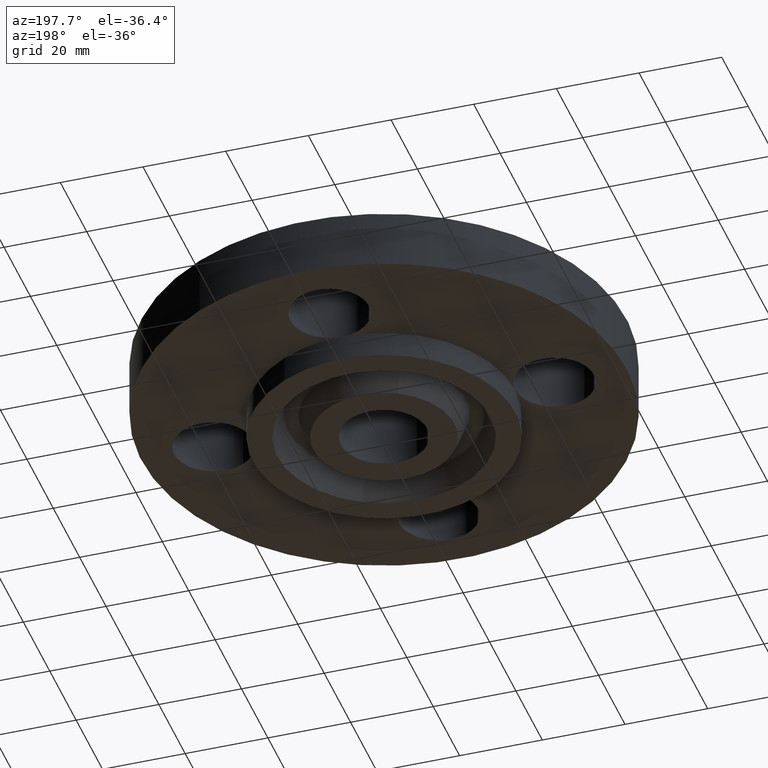
[diagram: clean part render]
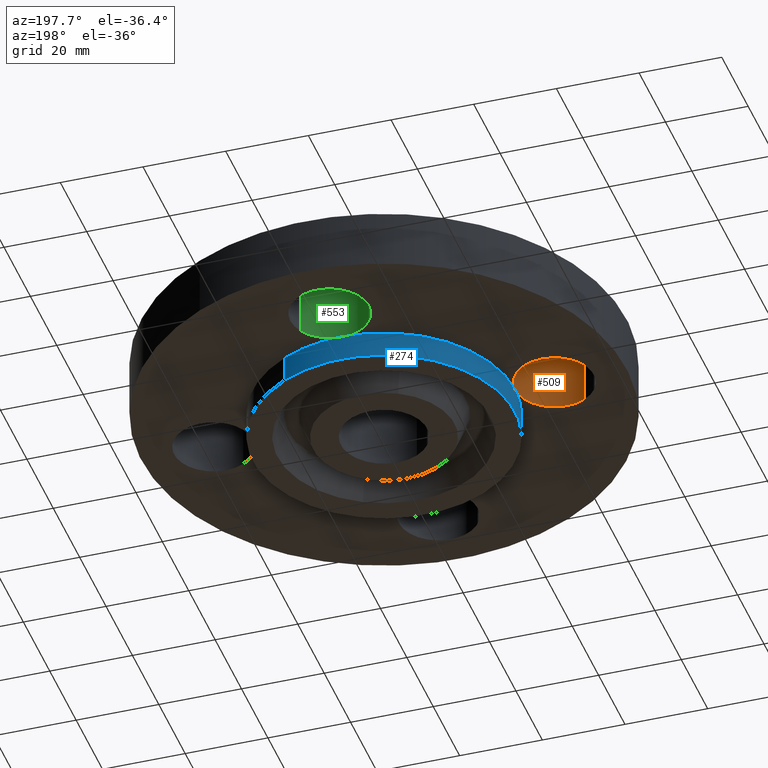
[diagram: same view with three faces highlighted in distinct colors, each labeled with its STEP entity id]
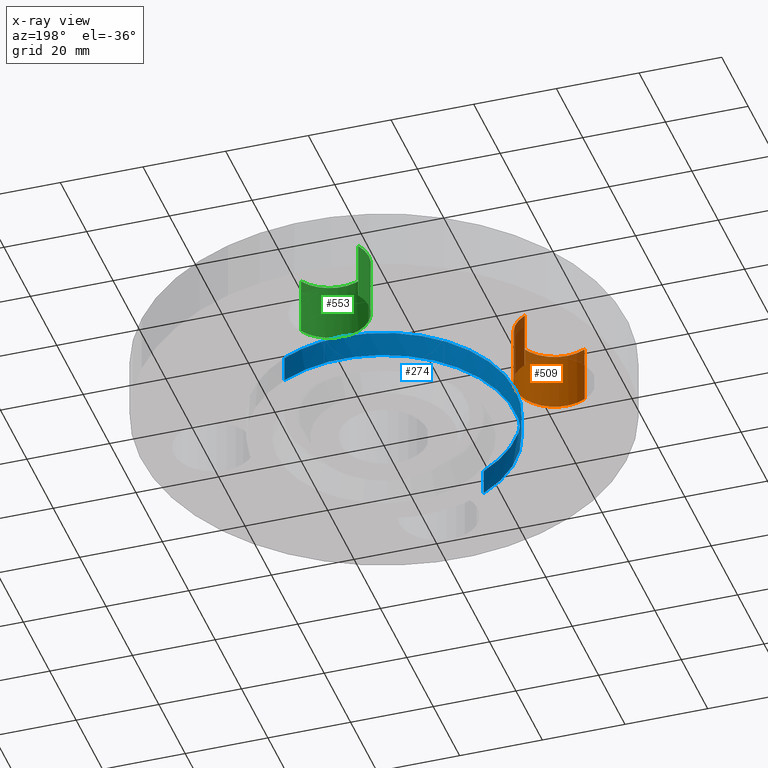
[diagram: x-ray of the same camera — body ghosted, the three highlighted faces saturated]
A machine part, auxiliary view with three faces highlighted in distinct colors.
The next image is the same camera in x-ray (body ghosted, the three faces saturated) — at least one of them is partly hidden behind the body in this view.
Their STEP definitions:

[orange] entity #509 — the highlighted cylindrical surface (partial cylindrical patch) has radius 9.525 mm, axis along (0, 0, -1).
#385=AXIS2_PLACEMENT_3D('Circle Axis2P3D',#383,#384,$) ;
#399=AXIS2_PLACEMENT_3D('Circle Axis2P3D',#397,#398,$) ;
#469=AXIS2_PLACEMENT_3D('Cylinder Axis2P3D',#466,#467,#468) ;
#499=AXIS2_PLACEMENT_3D('Circle Axis2P3D',#497,#498,$) ;
#244=CARTESIAN_POINT('Vertex',(-1.25000000001,-1.39870617276E-016,0.)) ;
#383=CARTESIAN_POINT('Axis2P3D Location',(-1.62500000001,-2.79741234551E-016,0.)) ;
#387=CARTESIAN_POINT('Vertex',(-1.44521542303,0.32909346071,6.99353086378E-017)) ;
#394=CARTESIAN_POINT('Vertex',(-1.80478457698,-0.32909346071,0.)) ;
#397=CARTESIAN_POINT('Axis2P3D Location',(-1.62500000001,-2.79741234551E-016,0.)) ;
#466=CARTESIAN_POINT('Axis2P3D Location',(-1.62500000001,-2.98507657293E-016,0.556062992128)) ;
#471=CARTESIAN_POINT('Line Origine',(-1.80478457698,-0.32909346071,0.280000000001)) ;
#475=CARTESIAN_POINT('Vertex',(-1.80478457698,-0.32909346071,0.560000000002)) ;
#478=CARTESIAN_POINT('Line Origine',(-1.44521542303,0.32909346071,0.280000000001)) ;
#482=CARTESIAN_POINT('Vertex',(-1.44521542303,0.32909346071,0.560000000002)) ;
#497=CARTESIAN_POINT('Axis2P3D Location',(-1.62500000001,-2.98507657293E-016,0.560000000002)) ;
#384=DIRECTION('Axis2P3D Direction',(0.,0.,-0.0393700787402)) ;
#398=DIRECTION('Axis2P3D Direction',(0.,0.,-0.0393700787402)) ;
#467=DIRECTION('Axis2P3D Direction',(0.,0.,-0.0393700787402)) ;
#468=DIRECTION('Axis2P3D XDirection',(0.0188750212049,0.0345504945626,0.)) ;
#472=DIRECTION('Vector Direction',(0.,0.,-0.0393700787402)) ;
#479=DIRECTION('Vector Direction',(0.,0.,-0.0393700787402)) ;
#498=DIRECTION('Axis2P3D Direction',(0.,0.,-0.0393700787402)) ;
#473=VECTOR('Line Direction',#472,0.0393700787402) ;
#480=VECTOR('Line Direction',#479,0.0393700787402) ;
#503=ORIENTED_EDGE('',*,*,#484,.F.) ;
#504=ORIENTED_EDGE('',*,*,#389,.T.) ;
#505=ORIENTED_EDGE('',*,*,#401,.T.) ;
#506=ORIENTED_EDGE('',*,*,#477,.T.) ;
#507=ORIENTED_EDGE('',*,*,#501,.F.) ;
#509=ADVANCED_FACE('PartBody',(#508),#470,.F.) ;
#386=CIRCLE('generated circle',#385,0.375000000001) ;
#400=CIRCLE('generated circle',#399,0.375000000001) ;
#500=CIRCLE('generated circle',#499,0.375000000001) ;
#470=CYLINDRICAL_SURFACE('generated cylinder',#469,0.375000000001) ;
#389=EDGE_CURVE('',#388,#245,#386,.T.) ;
#401=EDGE_CURVE('',#245,#395,#400,.T.) ;
#477=EDGE_CURVE('',#395,#476,#474,.F.) ;
#484=EDGE_CURVE('',#388,#483,#481,.F.) ;
#501=EDGE_CURVE('',#483,#476,#500,.T.) ;
#502=EDGE_LOOP('',(#503,#504,#505,#506,#507)) ;
#508=FACE_OUTER_BOUND('',#502,.T.) ;
#474=LINE('Line',#471,#473) ;
#481=LINE('Line',#478,#480) ;
#245=VERTEX_POINT('',#244) ;
#388=VERTEX_POINT('',#387) ;
#395=VERTEX_POINT('',#394) ;
#476=VERTEX_POINT('',#475) ;
#483=VERTEX_POINT('',#482) ;

[blue] entity #274 — the highlighted cylindrical surface (partial cylindrical patch) has radius 31.75 mm, axis along (0, 0, -1).
#193=AXIS2_PLACEMENT_3D('Circle Axis2P3D',#191,#192,$) ;
#231=AXIS2_PLACEMENT_3D('Cylinder Axis2P3D',#228,#229,#230) ;
#242=AXIS2_PLACEMENT_3D('Circle Axis2P3D',#240,#241,$) ;
#249=AXIS2_PLACEMENT_3D('Circle Axis2P3D',#247,#248,$) ;
#256=AXIS2_PLACEMENT_3D('Circle Axis2P3D',#254,#255,$) ;
#191=CARTESIAN_POINT('Axis2P3D Location',(0.,0.,-0.250000000001)) ;
#195=CARTESIAN_POINT('Vertex',(-0.599281923258,-1.09697820237,-0.250000000001)) ;
#197=CARTESIAN_POINT('Vertex',(0.599281923258,1.09697820237,-0.250000000001)) ;
#228=CARTESIAN_POINT('Axis2P3D Location',(0.,0.,0.345000000001)) ;
#233=CARTESIAN_POINT('Line Origine',(-0.599281923258,-1.09697820237,-0.125)) ;
#237=CARTESIAN_POINT('Vertex',(-0.599281923258,-1.09697820237,1.39870617276E-016)) ;
#240=CARTESIAN_POINT('Axis2P3D Location',(0.,0.,1.39870617276E-016)) ;
#244=CARTESIAN_POINT('Vertex',(-1.25000000001,-1.39870617276E-016,0.)) ;
#247=CARTESIAN_POINT('Axis2P3D Location',(0.,0.,1.39870617276E-016)) ;
#251=CARTESIAN_POINT('Vertex',(3.90510912389E-015,1.25000000001,1.39870617276E-016)) ;
#254=CARTESIAN_POINT('Axis2P3D Location',(0.,0.,1.39870617276E-016)) ;
#258=CARTESIAN_POINT('Vertex',(0.599281923258,1.09697820237,1.39870617276E-016)) ;
#261=CARTESIAN_POINT('Line Origine',(0.599281923258,1.09697820237,-0.125)) ;
#192=DIRECTION('Axis2P3D Direction',(0.,0.,-0.0393700787402)) ;
#229=DIRECTION('Axis2P3D Direction',(0.,0.,-0.0393700787402)) ;
#230=DIRECTION('Axis2P3D XDirection',(0.0188750212049,0.0345504945626,0.)) ;
#234=DIRECTION('Vector Direction',(0.,0.,-0.0393700787402)) ;
#241=DIRECTION('Axis2P3D Direction',(0.,0.,-0.0393700787402)) ;
#248=DIRECTION('Axis2P3D Direction',(0.,0.,-0.0393700787402)) ;
#255=DIRECTION('Axis2P3D Direction',(0.,0.,-0.0393700787402)) ;
#262=DIRECTION('Vector Direction',(0.,0.,-0.0393700787402)) ;
#235=VECTOR('Line Direction',#234,0.0393700787402) ;
#263=VECTOR('Line Direction',#262,0.0393700787402) ;
#267=ORIENTED_EDGE('',*,*,#199,.F.) ;
#268=ORIENTED_EDGE('',*,*,#239,.T.) ;
#269=ORIENTED_EDGE('',*,*,#246,.T.) ;
#270=ORIENTED_EDGE('',*,*,#253,.T.) ;
#271=ORIENTED_EDGE('',*,*,#260,.T.) ;
#272=ORIENTED_EDGE('',*,*,#265,.F.) ;
#274=ADVANCED_FACE('PartBody',(#273),#232,.T.) ;
#194=CIRCLE('generated circle',#193,1.25000000001) ;
#243=CIRCLE('generated circle',#242,1.25000000001) ;
#250=CIRCLE('generated circle',#249,1.25000000001) ;
#257=CIRCLE('generated circle',#256,1.25000000001) ;
#232=CYLINDRICAL_SURFACE('generated cylinder',#231,1.25000000001) ;
#199=EDGE_CURVE('',#196,#198,#194,.T.) ;
#239=EDGE_CURVE('',#196,#238,#236,.F.) ;
#246=EDGE_CURVE('',#238,#245,#243,.T.) ;
#253=EDGE_CURVE('',#245,#252,#250,.T.) ;
#260=EDGE_CURVE('',#252,#259,#257,.T.) ;
#265=EDGE_CURVE('',#198,#259,#264,.F.) ;
#266=EDGE_LOOP('',(#267,#268,#269,#270,#271,#272)) ;
#273=FACE_OUTER_BOUND('',#266,.T.) ;
#236=LINE('Line',#233,#235) ;
#264=LINE('Line',#261,#263) ;
#196=VERTEX_POINT('',#195) ;
#198=VERTEX_POINT('',#197) ;
#238=VERTEX_POINT('',#237) ;
#245=VERTEX_POINT('',#244) ;
#252=VERTEX_POINT('',#251) ;
#259=VERTEX_POINT('',#258) ;

[green] entity #553 — the highlighted cylindrical surface (partial cylindrical patch) has radius 9.525 mm, axis along (0, -0, -1).
#366=AXIS2_PLACEMENT_3D('Circle Axis2P3D',#364,#365,$) ;
#380=AXIS2_PLACEMENT_3D('Circle Axis2P3D',#378,#379,$) ;
#513=AXIS2_PLACEMENT_3D('Cylinder Axis2P3D',#510,#511,#512) ;
#543=AXIS2_PLACEMENT_3D('Circle Axis2P3D',#541,#542,$) ;
#251=CARTESIAN_POINT('Vertex',(3.90510912389E-015,1.25000000001,1.39870617276E-016)) ;
#364=CARTESIAN_POINT('Axis2P3D Location',(3.49676543189E-017,1.62500000001,0.)) ;
#368=CARTESIAN_POINT('Vertex',(0.32909346071,1.44521542303,6.99353086378E-017)) ;
#375=CARTESIAN_POINT('Vertex',(-0.32909346071,1.80478457698,6.99353086378E-017)) ;
#378=CARTESIAN_POINT('Axis2P3D Location',(3.49676543189E-017,1.62500000001,0.)) ;
#510=CARTESIAN_POINT('Axis2P3D Location',(0.,1.62500000001,0.556062992128)) ;
#515=CARTESIAN_POINT('Line Origine',(-0.32909346071,1.80478457698,0.280000000001)) ;
#519=CARTESIAN_POINT('Vertex',(-0.32909346071,1.80478457698,0.560000000002)) ;
#522=CARTESIAN_POINT('Line Origine',(0.32909346071,1.44521542303,0.280000000001)) ;
#526=CARTESIAN_POINT('Vertex',(0.32909346071,1.44521542303,0.560000000002)) ;
#541=CARTESIAN_POINT('Axis2P3D Location',(0.,1.62500000001,0.560000000002)) ;
#365=DIRECTION('Axis2P3D Direction',(0.,0.,-0.0393700787402)) ;
#379=DIRECTION('Axis2P3D Direction',(0.,0.,-0.0393700787402)) ;
#511=DIRECTION('Axis2P3D Direction',(0.,-0.,-0.0393700787402)) ;
#512=DIRECTION('Axis2P3D XDirection',(0.0345504945626,-0.0188750212049,0.)) ;
#516=DIRECTION('Vector Direction',(0.,0.,-0.0393700787402)) ;
#523=DIRECTION('Vector Direction',(0.,0.,-0.0393700787402)) ;
#542=DIRECTION('Axis2P3D Direction',(0.,-0.,-0.0393700787402)) ;
#517=VECTOR('Line Direction',#516,0.0393700787402) ;
#524=VECTOR('Line Direction',#523,0.0393700787402) ;
#547=ORIENTED_EDGE('',*,*,#528,.F.) ;
#548=ORIENTED_EDGE('',*,*,#370,.T.) ;
#549=ORIENTED_EDGE('',*,*,#382,.T.) ;
#550=ORIENTED_EDGE('',*,*,#521,.T.) ;
#551=ORIENTED_EDGE('',*,*,#545,.F.) ;
#553=ADVANCED_FACE('PartBody',(#552),#514,.F.) ;
#367=CIRCLE('generated circle',#366,0.375000000001) ;
#381=CIRCLE('generated circle',#380,0.375000000001) ;
#544=CIRCLE('generated circle',#543,0.375000000001) ;
#514=CYLINDRICAL_SURFACE('generated cylinder',#513,0.375000000001) ;
#370=EDGE_CURVE('',#369,#252,#367,.T.) ;
#382=EDGE_CURVE('',#252,#376,#381,.T.) ;
#521=EDGE_CURVE('',#376,#520,#518,.F.) ;
#528=EDGE_CURVE('',#369,#527,#525,.F.) ;
#545=EDGE_CURVE('',#527,#520,#544,.T.) ;
#546=EDGE_LOOP('',(#547,#548,#549,#550,#551)) ;
#552=FACE_OUTER_BOUND('',#546,.T.) ;
#518=LINE('Line',#515,#517) ;
#525=LINE('Line',#522,#524) ;
#252=VERTEX_POINT('',#251) ;
#369=VERTEX_POINT('',#368) ;
#376=VERTEX_POINT('',#375) ;
#520=VERTEX_POINT('',#519) ;
#527=VERTEX_POINT('',#526) ;